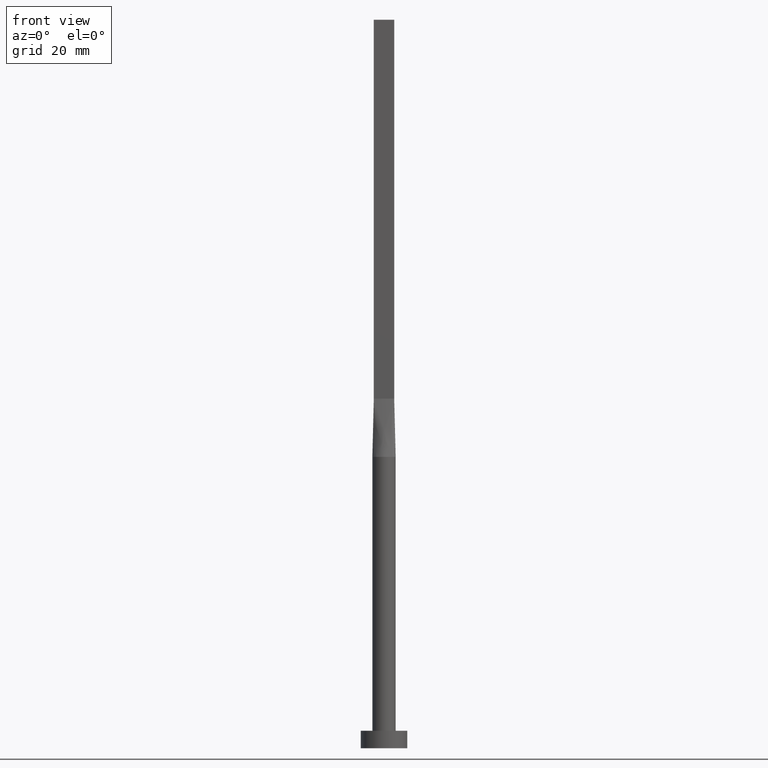
[diagram: clean part render]
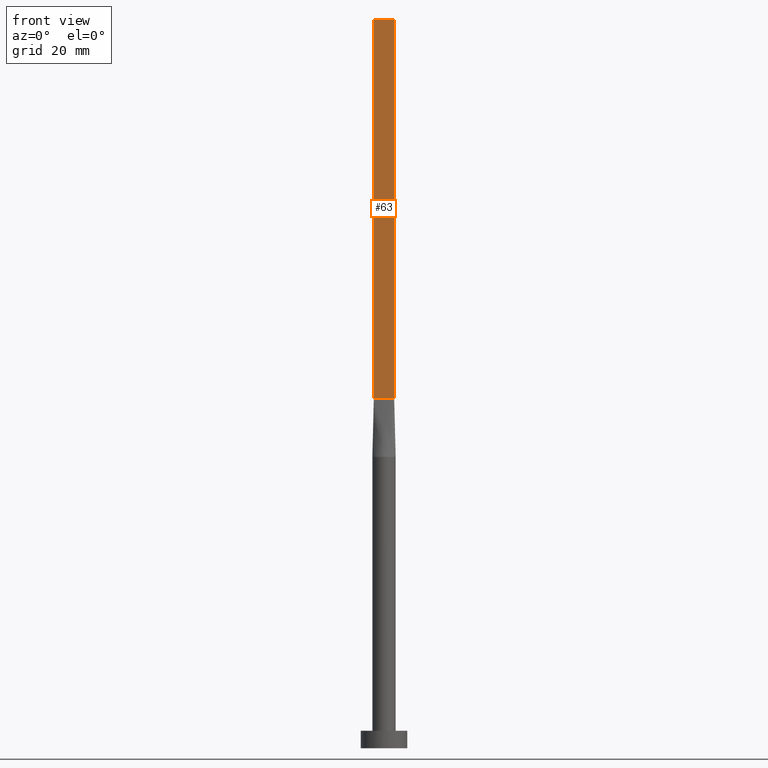
[diagram: same view with one face highlighted and labeled with its STEP entity id]
A machine part, front view. The second image highlights one B-rep face of the part: STEP entity #63.
In plain terms, the highlighted planar face has unit normal (0, 1, 0).
Its self-contained STEP definition (entity closure, byte-faithful):
#2 = FACE_OUTER_BOUND ( 'NONE', #64, .T. ) ;
#26 = VECTOR ( 'NONE', #576, 1000.000000000000000 ) ;
#41 = CARTESIAN_POINT ( 'NONE',  ( -1.750000000000000000, -0.3999999999999996891, 125.0000000000000000 ) ) ;
#63 = ADVANCED_FACE ( 'NONE', ( #2 ), #192, .F. ) ;
#64 = EDGE_LOOP ( 'NONE', ( #254, #239, #207, #424 ) ) ;
#69 = VERTEX_POINT ( 'NONE', #354 ) ;
#82 = VERTEX_POINT ( 'NONE', #307 ) ;
#86 = LINE ( 'NONE', #391, #26 ) ;
#132 = CARTESIAN_POINT ( 'NONE',  ( 1.750000000000000000, -0.3999999999999996891, 60.00000000000000711 ) ) ;
#147 = CARTESIAN_POINT ( 'NONE',  ( -1.750000000000000000, -0.3999999999999996891, 125.0000000000000000 ) ) ;
#172 = DIRECTION ( 'NONE',  ( 1.000000000000000000, 0.000000000000000000, 0.000000000000000000 ) ) ;
#179 = LINE ( 'NONE', #344, #189 ) ;
#181 = LINE ( 'NONE', #41, #260 ) ;
#186 = CARTESIAN_POINT ( 'NONE',  ( -1.750000000000000000, -0.3999999999999996891, 60.00000000000000711 ) ) ;
#189 = VECTOR ( 'NONE', #300, 1000.000000000000000 ) ;
#192 = PLANE ( 'NONE',  #197 ) ;
#197 = AXIS2_PLACEMENT_3D ( 'NONE', #147, #313, #276 ) ;
#207 = ORIENTED_EDGE ( 'NONE', *, *, #390, .F. ) ;
#239 = ORIENTED_EDGE ( 'NONE', *, *, #318, .F. ) ;
#248 = LINE ( 'NONE', #186, #425 ) ;
#249 = EDGE_CURVE ( 'NONE', #82, #410, #248, .T. ) ;
#254 = ORIENTED_EDGE ( 'NONE', *, *, #249, .T. ) ;
#259 = CARTESIAN_POINT ( 'NONE',  ( 1.750000000000000000, -0.3999999999999996891, 125.0000000000000000 ) ) ;
#260 = VECTOR ( 'NONE', #172, 1000.000000000000000 ) ;
#276 = DIRECTION ( 'NONE',  ( 0.000000000000000000, -0.000000000000000000, 1.000000000000000000 ) ) ;
#300 = DIRECTION ( 'NONE',  ( -0.000000000000000000, -0.000000000000000000, -1.000000000000000000 ) ) ;
#307 = CARTESIAN_POINT ( 'NONE',  ( -1.750000000000000000, -0.3999999999999996891, 60.00000000000000711 ) ) ;
#313 = DIRECTION ( 'NONE',  ( 0.000000000000000000, 1.000000000000000000, 0.000000000000000000 ) ) ;
#318 = EDGE_CURVE ( 'NONE', #335, #410, #86, .T. ) ;
#335 = VERTEX_POINT ( 'NONE', #259 ) ;
#344 = CARTESIAN_POINT ( 'NONE',  ( -1.750000000000000000, -0.3999999999999996891, 125.0000000000000000 ) ) ;
#354 = CARTESIAN_POINT ( 'NONE',  ( -1.750000000000000000, -0.3999999999999996891, 125.0000000000000000 ) ) ;
#390 = EDGE_CURVE ( 'NONE', #69, #335, #181, .T. ) ;
#391 = CARTESIAN_POINT ( 'NONE',  ( 1.750000000000000000, -0.3999999999999996891, 125.0000000000000000 ) ) ;
#410 = VERTEX_POINT ( 'NONE', #132 ) ;
#424 = ORIENTED_EDGE ( 'NONE', *, *, #444, .T. ) ;
#425 = VECTOR ( 'NONE', #536, 1000.000000000000000 ) ;
#444 = EDGE_CURVE ( 'NONE', #69, #82, #179, .T. ) ;
#536 = DIRECTION ( 'NONE',  ( 1.000000000000000000, 0.000000000000000000, 0.000000000000000000 ) ) ;
#576 = DIRECTION ( 'NONE',  ( -0.000000000000000000, -0.000000000000000000, -1.000000000000000000 ) ) ;